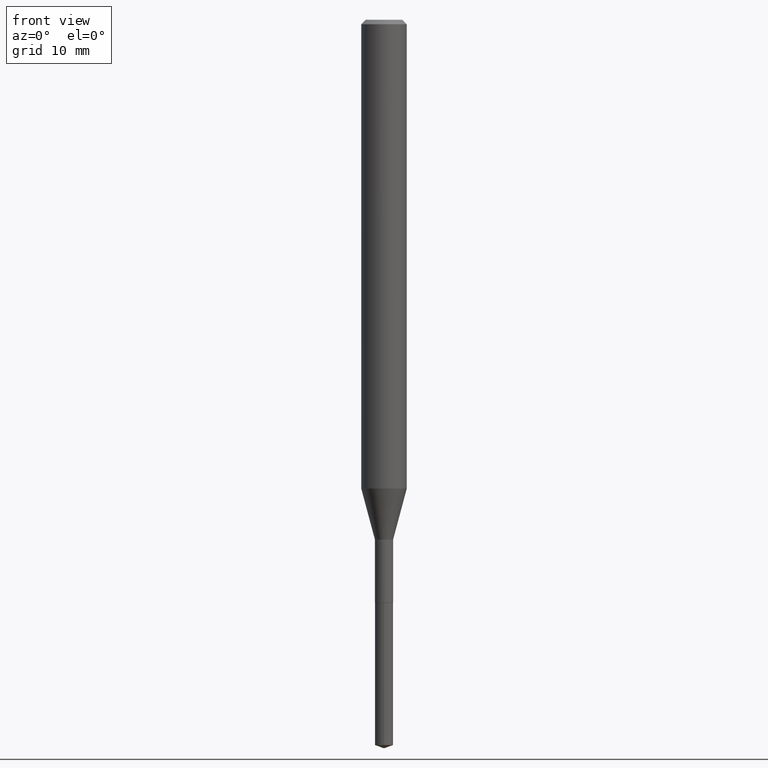
[diagram: clean part render]
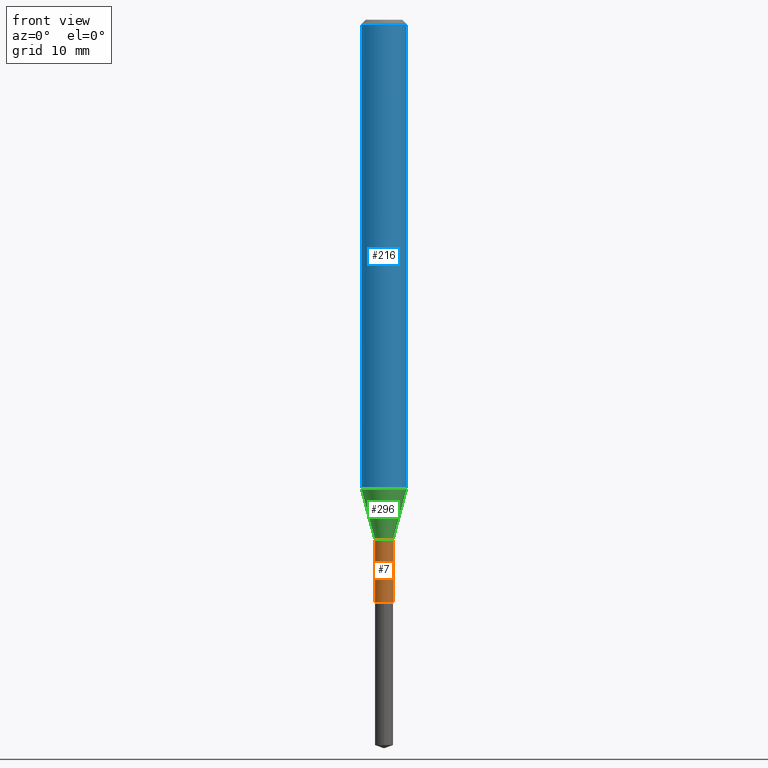
[diagram: same view with three faces highlighted in distinct colors, each labeled with its STEP entity id]
A machine part, front view with three faces highlighted in distinct colors.
Their STEP definitions:

[orange] entity #7 — the highlighted cylindrical surface (edge-blend (fillet) strip) has radius 0.8001 mm, axis along (-0, 0, 1).
#7 = ADVANCED_FACE ( 'NONE', ( #275 ), #468, .T. ) ;
#15 = EDGE_CURVE ( 'NONE', #45, #187, #80, .T. ) ;
#23 = VERTEX_POINT ( 'NONE', #241 ) ;
#42 = LINE ( 'NONE', #306, #287 ) ;
#45 = VERTEX_POINT ( 'NONE', #360 ) ;
#50 = CIRCLE ( 'NONE', #485, 0.03150000000000005573 ) ;
#52 = DIRECTION ( 'NONE',  ( 1.000000000000000000, -6.982962677686281699E-15, 0.000000000000000000 ) ) ;
#73 = CARTESIAN_POINT ( 'NONE',  ( 4.928353285104905744E-29, -7.036382342170590752E-15, -2.015299999999999869 ) ) ;
#80 = CIRCLE ( 'NONE', #319, 0.03150000000000002104 ) ;
#82 = EDGE_LOOP ( 'NONE', ( #234, #342, #136, #352 ) ) ;
#102 = EDGE_CURVE ( 'NONE', #23, #187, #337, .T. ) ;
#136 = ORIENTED_EDGE ( 'NONE', *, *, #102, .T. ) ;
#171 = CARTESIAN_POINT ( 'NONE',  ( 4.395974725998400988E-29, -6.276286854704438910E-15, -1.797599999999999865 ) ) ;
#187 = VERTEX_POINT ( 'NONE', #264 ) ;
#191 = EDGE_CURVE ( 'NONE', #281, #23, #50, .T. ) ;
#214 = VECTOR ( 'NONE', #489, 39.37007874015748143 ) ;
#234 = ORIENTED_EDGE ( 'NONE', *, *, #283, .F. ) ;
#241 = CARTESIAN_POINT ( 'NONE',  ( 0.03150000000000005573, -7.256345666517709668E-15, -2.015299999999999869 ) ) ;
#264 = CARTESIAN_POINT ( 'NONE',  ( 0.03150000000000002104, -6.496250179051557038E-15, -1.797599999999999865 ) ) ;
#275 = FACE_OUTER_BOUND ( 'NONE', #82, .T. ) ;
#281 = VERTEX_POINT ( 'NONE', #382 ) ;
#282 = DIRECTION ( 'NONE',  ( 1.000000000000000000, -6.982962677686265922E-15, 4.876176775795935232E-29 ) ) ;
#283 = EDGE_CURVE ( 'NONE', #281, #45, #42, .T. ) ;
#287 = VECTOR ( 'NONE', #355, 39.37007874015748143 ) ;
#306 = CARTESIAN_POINT ( 'NONE',  ( -0.03150000000000004186, 2.238209617644318559E-16, -1.549464553430297254E-30 ) ) ;
#319 = AXIS2_PLACEMENT_3D ( 'NONE', #171, #395, #52 ) ;
#337 = LINE ( 'NONE', #487, #214 ) ;
#342 = ORIENTED_EDGE ( 'NONE', *, *, #191, .T. ) ;
#352 = ORIENTED_EDGE ( 'NONE', *, *, #15, .F. ) ;
#355 = DIRECTION ( 'NONE',  ( -2.445468806185136877E-29, 3.491481338843145188E-15, 1.000000000000000000 ) ) ;
#360 = CARTESIAN_POINT ( 'NONE',  ( -0.03150000000000002104, -6.432513636673082680E-15, -1.797599999999999865 ) ) ;
#382 = CARTESIAN_POINT ( 'NONE',  ( -0.03150000000000004879, -6.432513636673082680E-15, -2.015299999999999869 ) ) ;
#395 = DIRECTION ( 'NONE',  ( -2.445468806185136597E-29, 3.491481338843145583E-15, 1.000000000000000000 ) ) ;
#398 = DIRECTION ( 'NONE',  ( -2.445468806185136597E-29, 3.491481338843145583E-15, 1.000000000000000000 ) ) ;
#402 = AXIS2_PLACEMENT_3D ( 'NONE', #429, #398, #282 ) ;
#418 = DIRECTION ( 'NONE',  ( -2.445468806185136597E-29, 3.491481338843145583E-15, 1.000000000000000000 ) ) ;
#429 = CARTESIAN_POINT ( 'NONE',  ( 0.000000000000000000, 0.000000000000000000, 0.000000000000000000 ) ) ;
#456 = DIRECTION ( 'NONE',  ( 1.000000000000000000, -6.982962677686274599E-15, 0.000000000000000000 ) ) ;
#468 = CYLINDRICAL_SURFACE ( 'NONE', #402, 0.03150000000000004186 ) ;
#485 = AXIS2_PLACEMENT_3D ( 'NONE', #73, #418, #456 ) ;
#487 = CARTESIAN_POINT ( 'NONE',  ( 0.03150000000000004186, -2.199633243471176587E-16, 1.535995684375721638E-30 ) ) ;
#489 = DIRECTION ( 'NONE',  ( -2.445468806185136877E-29, 3.491481338843145188E-15, 1.000000000000000000 ) ) ;

[blue] entity #216 — the highlighted cylindrical surface (edge-blend (fillet) strip) has radius 2.0003 mm, axis along (-0, 0, 1).
#17 = VERTEX_POINT ( 'NONE', #354 ) ;
#32 = EDGE_CURVE ( 'NONE', #48, #17, #168, .T. ) ;
#38 = DIRECTION ( 'NONE',  ( 1.000000000000000000, -6.982962677686267499E-15, 4.876176775795935232E-29 ) ) ;
#48 = VERTEX_POINT ( 'NONE', #363 ) ;
#59 = DIRECTION ( 'NONE',  ( -2.445468806185136597E-29, 3.491481338843145583E-15, 1.000000000000000000 ) ) ;
#61 = LINE ( 'NONE', #449, #89 ) ;
#64 = FACE_OUTER_BOUND ( 'NONE', #310, .T. ) ;
#67 = DIRECTION ( 'NONE',  ( -2.445468806185136877E-29, 3.491481338843145188E-15, 1.000000000000000000 ) ) ;
#72 = CIRCLE ( 'NONE', #347, 0.07875000000000000056 ) ;
#88 = AXIS2_PLACEMENT_3D ( 'NONE', #443, #59, #435 ) ;
#89 = VECTOR ( 'NONE', #67, 39.37007874015748143 ) ;
#108 = EDGE_CURVE ( 'NONE', #134, #272, #61, .T. ) ;
#134 = VERTEX_POINT ( 'NONE', #149 ) ;
#139 = DIRECTION ( 'NONE',  ( 1.000000000000000000, -6.982962677686265922E-15, 0.000000000000000000 ) ) ;
#140 = VECTOR ( 'NONE', #286, 39.37007874015748143 ) ;
#149 = CARTESIAN_POINT ( 'NONE',  ( 0.07875000000000016709, -6.210509438873335561E-15, -1.621260599342370323 ) ) ;
#152 = ORIENTED_EDGE ( 'NONE', *, *, #477, .T. ) ;
#168 = LINE ( 'NONE', #204, #140 ) ;
#204 = CARTESIAN_POINT ( 'NONE',  ( -0.07875000000000008382, 5.595524044110794920E-16, -3.873661383575742696E-30 ) ) ;
#212 = CARTESIAN_POINT ( 'NONE',  ( 0.000000000000000000, 0.000000000000000000, 0.000000000000000000 ) ) ;
#216 = ADVANCED_FACE ( 'NONE', ( #64 ), #227, .T. ) ;
#227 = CYLINDRICAL_SURFACE ( 'NONE', #366, 0.07875000000000008382 ) ;
#266 = CARTESIAN_POINT ( 'NONE',  ( 0.07875000000000000056, -6.048991419545734691E-16, -0.01575000000000011460 ) ) ;
#272 = VERTEX_POINT ( 'NONE', #266 ) ;
#286 = DIRECTION ( 'NONE',  ( -2.445468806185136877E-29, 3.491481338843145188E-15, 1.000000000000000000 ) ) ;
#310 = EDGE_LOOP ( 'NONE', ( #474, #152, #437, #381 ) ) ;
#339 = CIRCLE ( 'NONE', #88, 0.07875000000000018097 ) ;
#347 = AXIS2_PLACEMENT_3D ( 'NONE', #475, #397, #139 ) ;
#354 = CARTESIAN_POINT ( 'NONE',  ( -0.07875000000000000056, -2.298243575135078818E-15, -0.01575000000000011460 ) ) ;
#363 = CARTESIAN_POINT ( 'NONE',  ( -0.07875000000000016709, -5.101048723594459469E-15, -1.621260599342370323 ) ) ;
#366 = AXIS2_PLACEMENT_3D ( 'NONE', #212, #380, #38 ) ;
#380 = DIRECTION ( 'NONE',  ( -2.445468806185136597E-29, 3.491481338843145583E-15, 1.000000000000000000 ) ) ;
#381 = ORIENTED_EDGE ( 'NONE', *, *, #448, .F. ) ;
#397 = DIRECTION ( 'NONE',  ( -2.445468806185136597E-29, 3.491481338843145583E-15, 1.000000000000000000 ) ) ;
#435 = DIRECTION ( 'NONE',  ( 1.000000000000000000, -6.982962677686269866E-15, 0.000000000000000000 ) ) ;
#437 = ORIENTED_EDGE ( 'NONE', *, *, #108, .T. ) ;
#443 = CARTESIAN_POINT ( 'NONE',  ( 3.964742222388785374E-29, -5.660601128005539849E-15, -1.621260599342370323 ) ) ;
#448 = EDGE_CURVE ( 'NONE', #17, #272, #72, .T. ) ;
#449 = CARTESIAN_POINT ( 'NONE',  ( 0.07875000000000008382, -5.499083108677941345E-16, 3.839989210939303220E-30 ) ) ;
#474 = ORIENTED_EDGE ( 'NONE', *, *, #32, .F. ) ;
#475 = CARTESIAN_POINT ( 'NONE',  ( 3.851613369741617865E-31, -5.499083108677993854E-17, -0.01575000000000011460 ) ) ;
#477 = EDGE_CURVE ( 'NONE', #48, #134, #339, .T. ) ;

[green] entity #296 — the highlighted conical surface has half-angle 15 deg.
#15 = EDGE_CURVE ( 'NONE', #45, #187, #80, .T. ) ;
#18 = CARTESIAN_POINT ( 'NONE',  ( 4.395974725998400988E-29, -6.276286854704438910E-15, -1.797599999999999865 ) ) ;
#36 = ORIENTED_EDGE ( 'NONE', *, *, #477, .F. ) ;
#45 = VERTEX_POINT ( 'NONE', #360 ) ;
#48 = VERTEX_POINT ( 'NONE', #363 ) ;
#49 = CONICAL_SURFACE ( 'NONE', #157, 0.03150000000000002104, 0.2617993877991500740 ) ;
#52 = DIRECTION ( 'NONE',  ( 1.000000000000000000, -6.982962677686281699E-15, 0.000000000000000000 ) ) ;
#59 = DIRECTION ( 'NONE',  ( -2.445468806185136597E-29, 3.491481338843145583E-15, 1.000000000000000000 ) ) ;
#70 = EDGE_CURVE ( 'NONE', #187, #134, #454, .T. ) ;
#80 = CIRCLE ( 'NONE', #319, 0.03150000000000002104 ) ;
#88 = AXIS2_PLACEMENT_3D ( 'NONE', #443, #59, #435 ) ;
#105 = DIRECTION ( 'NONE',  ( 0.2588190451025213501, 1.565188264969621968E-15, 0.9659258262890682012 ) ) ;
#123 = VECTOR ( 'NONE', #105, 39.37007874015747433 ) ;
#134 = VERTEX_POINT ( 'NONE', #149 ) ;
#149 = CARTESIAN_POINT ( 'NONE',  ( 0.07875000000000016709, -6.210509438873335561E-15, -1.621260599342370323 ) ) ;
#157 = AXIS2_PLACEMENT_3D ( 'NONE', #18, #193, #458 ) ;
#158 = EDGE_CURVE ( 'NONE', #45, #48, #252, .T. ) ;
#171 = CARTESIAN_POINT ( 'NONE',  ( 4.395974725998400988E-29, -6.276286854704438910E-15, -1.797599999999999865 ) ) ;
#187 = VERTEX_POINT ( 'NONE', #264 ) ;
#193 = DIRECTION ( 'NONE',  ( -2.445468806185136597E-29, 3.491481338843145583E-15, 1.000000000000000000 ) ) ;
#195 = ORIENTED_EDGE ( 'NONE', *, *, #70, .T. ) ;
#252 = LINE ( 'NONE', #300, #439 ) ;
#264 = CARTESIAN_POINT ( 'NONE',  ( 0.03150000000000002104, -6.496250179051557038E-15, -1.797599999999999865 ) ) ;
#270 = EDGE_LOOP ( 'NONE', ( #305, #440, #195, #36 ) ) ;
#296 = ADVANCED_FACE ( 'NONE', ( #467 ), #49, .T. ) ;
#300 = CARTESIAN_POINT ( 'NONE',  ( -0.03150000000000002104, -6.052465892940006759E-15, -1.797599999999999865 ) ) ;
#305 = ORIENTED_EDGE ( 'NONE', *, *, #158, .F. ) ;
#319 = AXIS2_PLACEMENT_3D ( 'NONE', #171, #395, #52 ) ;
#339 = CIRCLE ( 'NONE', #88, 0.07875000000000018097 ) ;
#360 = CARTESIAN_POINT ( 'NONE',  ( -0.03150000000000002104, -6.432513636673082680E-15, -1.797599999999999865 ) ) ;
#363 = CARTESIAN_POINT ( 'NONE',  ( -0.07875000000000016709, -5.101048723594459469E-15, -1.621260599342370323 ) ) ;
#365 = DIRECTION ( 'NONE',  ( -0.2588190451025213501, 5.211531920934551042E-15, 0.9659258262890682012 ) ) ;
#395 = DIRECTION ( 'NONE',  ( -2.445468806185136597E-29, 3.491481338843145583E-15, 1.000000000000000000 ) ) ;
#405 = CARTESIAN_POINT ( 'NONE',  ( 0.03150000000000002104, -6.496250179051557038E-15, -1.797599999999999865 ) ) ;
#435 = DIRECTION ( 'NONE',  ( 1.000000000000000000, -6.982962677686269866E-15, 0.000000000000000000 ) ) ;
#439 = VECTOR ( 'NONE', #365, 39.37007874015747433 ) ;
#440 = ORIENTED_EDGE ( 'NONE', *, *, #15, .T. ) ;
#443 = CARTESIAN_POINT ( 'NONE',  ( 3.964742222388785374E-29, -5.660601128005539849E-15, -1.621260599342370323 ) ) ;
#454 = LINE ( 'NONE', #405, #123 ) ;
#458 = DIRECTION ( 'NONE',  ( 1.000000000000000000, -6.982962677686281699E-15, 0.000000000000000000 ) ) ;
#467 = FACE_OUTER_BOUND ( 'NONE', #270, .T. ) ;
#477 = EDGE_CURVE ( 'NONE', #48, #134, #339, .T. ) ;